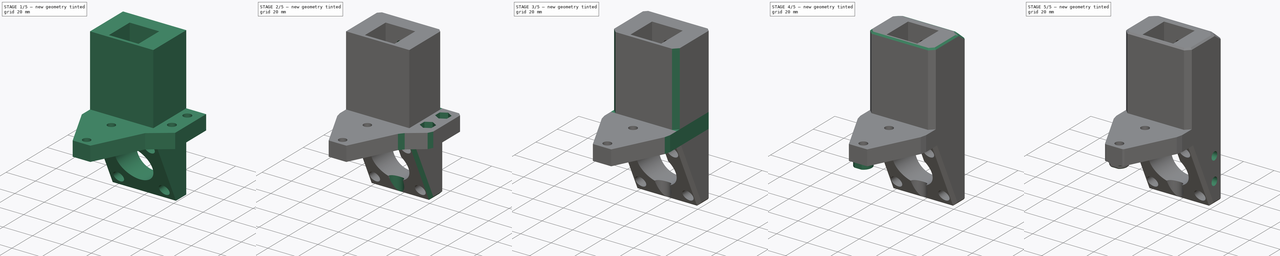
[diagram: build sequence overview — one tinted view per stage of 5, left to right]
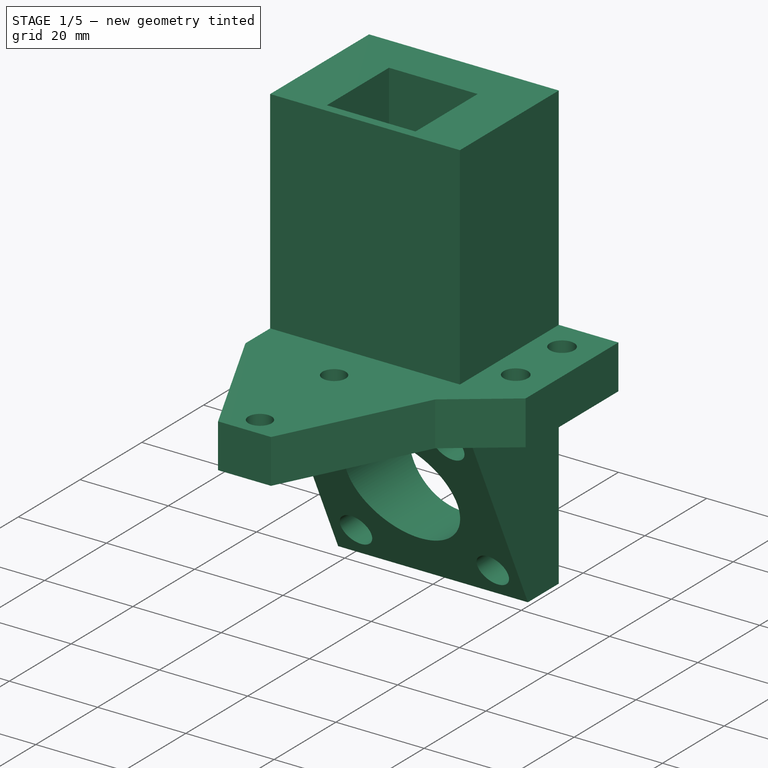
[diagram: stage 1 of 5 — iso view after this stage's code; geometry added in this stage tinted green]
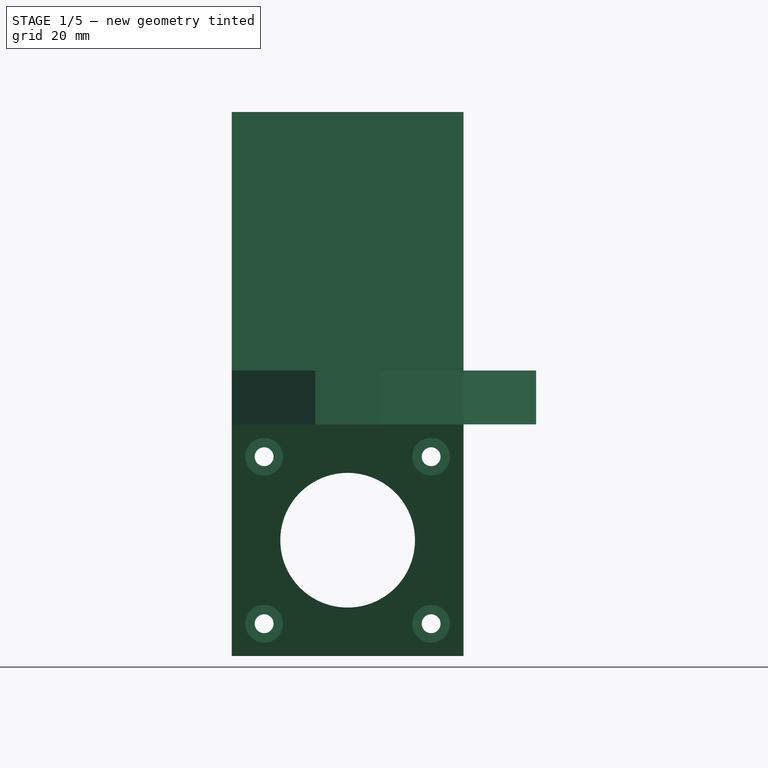
[diagram: stage 1 of 5 — front view after this stage's code; geometry added in this stage tinted green]
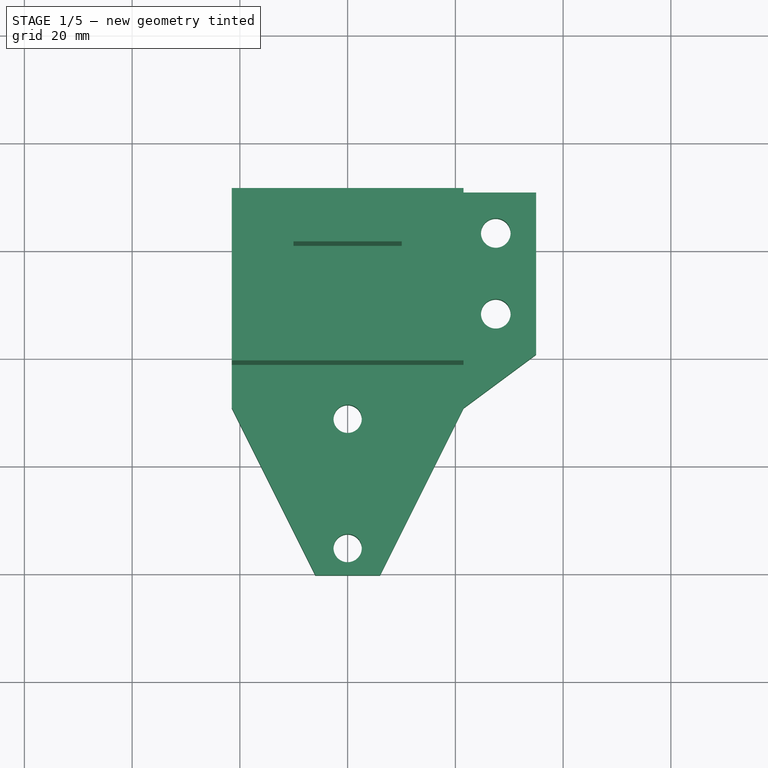
[diagram: stage 1 of 5 — top view after this stage's code; geometry added in this stage tinted green]
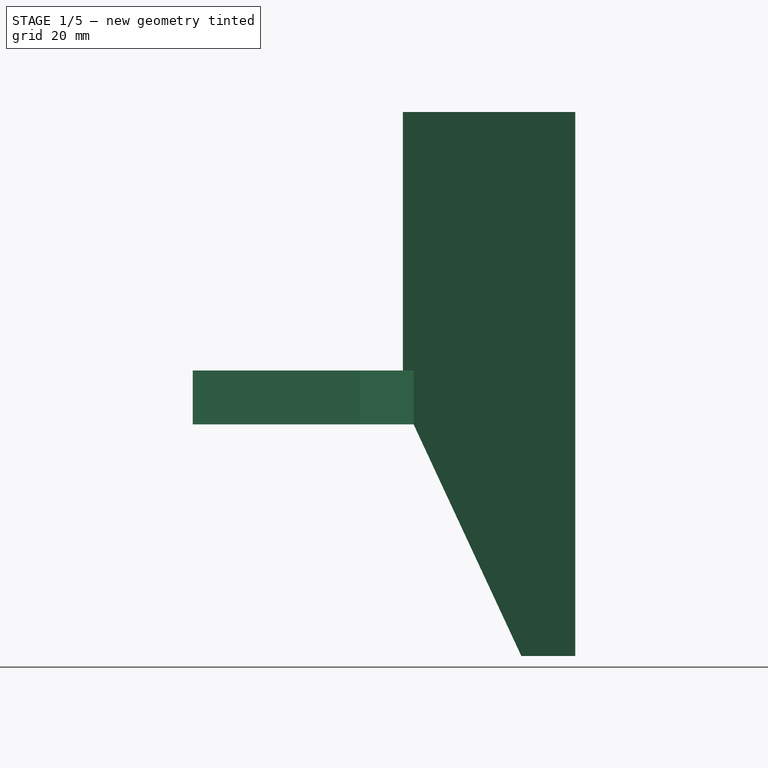
[diagram: stage 1 of 5 — right view after this stage's code; geometry added in this stage tinted green]
FCSTD DOCUMENT  (FreeCAD 0.19R24276 (Git))
Label: x-motor-mount
License: All rights reserved
LicenseURL: http://en.wikipedia.org/wiki/All_rights_reserved
objects: Sketcher::SketchObject×16, PartDesign::Plane×10, PartDesign::Pocket×9, PartDesign::Pad×5, PartDesign::Chamfer×5, PartDesign::Fillet×4, PartDesign::Hole×1, PartDesign::Body×1
note: 75 computed .brp shape members not serialized (recipe doc carries the construction recipe); baked Part::Feature solids carry a one-line shape summary decoded from their .brp

FEATURE [Sketcher::SketchObject] Sketch
  FullyConstrained = true
  MapMode = 5
  Support = -> [XY_Plane]
  sketch-geometry (12):
    g0: LineSegment StartX=35 StartY=1e-16 StartZ=0 EndX=35 EndY=30 EndZ=0
    g1: LineSegment StartX=35 StartY=30 StartZ=0 EndX=-21.5 EndY=30 EndZ=0
    g2: LineSegment StartX=-21.5 StartY=30 StartZ=0 EndX=-21.5 EndY=0 EndZ=0
    g3: Circle CenterX=27.5 CenterY=22.5 CenterZ=0 NormalX=0 NormalY=0 NormalZ=1 AngleXU=0 Radius=2.75
    g4: Circle CenterX=27.5 CenterY=7.5 CenterZ=0 NormalX=0 NormalY=0 NormalZ=1 AngleXU=0 Radius=2.75
    g5: LineSegment StartX=-21.5 StartY=-10 StartZ=0 EndX=-6 EndY=-41 EndZ=0
    g6: LineSegment StartX=-6 StartY=-41 StartZ=0 EndX=6 EndY=-41 EndZ=0
    g7: LineSegment StartX=6 StartY=-41 StartZ=0 EndX=21.5 EndY=-10 EndZ=0
    g8: LineSegment StartX=-21.5 StartY=0 StartZ=0 EndX=-21.5 EndY=-10 EndZ=0
    g9: LineSegment StartX=35 StartY=1e-16 StartZ=0 EndX=21.5 EndY=-10 EndZ=0
    g10: Circle CenterX=0 CenterY=-12 CenterZ=0 NormalX=0 NormalY=0 NormalZ=1 AngleXU=0 Radius=2.625
    g11: Circle CenterX=0 CenterY=-36 CenterZ=0 NormalX=0 NormalY=0 NormalZ=1 AngleXU=0 Radius=2.625
  constraints (35):
    c: Coincident(g0,g1)
    c: Coincident(g1,g2)
    c: Horizontal(g1)
    c: Vertical(g0)
    c: Vertical(g2)
    c: PointOnObject(g2,g-1)
    c: Distance(g0) = 30
    c: Diameter(g3) = 5.5
    c: Diameter(g4) = 5.5
    c: Distance(g3,g1) = 7.5
    c: Coincident(g6,g5)
    c: Coincident(g7,g6)
    c: Coincident(g8,g2)
    c: Coincident(g5,g8)
    c: Symmetric(g6,g5,g-2)
    c: DistanceX(g6,g6) = 12
    c: Coincident(g9,g7)
    c: PointOnObject(g10,g-2)
    c: PointOnObject(g11,g-2)
    c: Diameter(g10) = 5.25
    c: Equal(g10,g11)
    c: DistanceY(g11,g10) = 24
    c: DistanceY(g10,g-1) = 12
    c: DistanceX(g5,g7) = 43
    c: DistanceX(g-1,g0) = 35
    c: DistanceY(g-1,g1) = 30
    c: DistanceX(g2,g-1) = 21.5
    c: DistanceY(g4,g3) = 15
    c: Vertical(g4,g3)
    c: DistanceX(g-1,g4) = 27.5
    c: Vertical(g8)
    c: DistanceY(g8,g8) = 10
    c: Horizontal(g7,g5)
    c: Coincident(g9,g0)
    c: DistanceY(g6,g-1) = 41
FEATURE [PartDesign::Pad] Pad
  AllowMultiFace = false
  Direction = (0,0,1)
  Length = 10
  Length2 = 100
  Profile = -> Sketch
  Type = 0
FEATURE [PartDesign::Plane] DatumPlane
  Length = 64.2127
  MapMode = 5
  Placement = pos=(0,30,0) rot=(0,0.707107,0.707107;3.14159rad)
  ResizeMode = 0
  Support = -> [Pad]
  Width = 115.213
FEATURE [Sketcher::SketchObject] Sketch004  label="belt_cut_out"
  FullyConstrained = true
  MapMode = 5
  Support = -> [XY_Plane]
  sketch-geometry (4):
    g0: LineSegment StartX=-10 StartY=15 StartZ=0 EndX=10 EndY=15 EndZ=0
    g1: LineSegment StartX=10 StartY=15 StartZ=0 EndX=10 EndY=3 EndZ=0
    g2: LineSegment StartX=10 StartY=3 StartZ=0 EndX=-10 EndY=3 EndZ=0
    g3: LineSegment StartX=-10 StartY=3 StartZ=0 EndX=-10 EndY=15 EndZ=0
  constraints (11):
    c: Coincident(g0,g1)
    c: Coincident(g1,g2)
    c: Coincident(g2,g3)
    c: Coincident(g3,g0)
    c: Horizontal(g0)
    c: Vertical(g1)
    c: Vertical(g3)
    c: Symmetric(g2,g1,g-2)
    c: DistanceX(g2,g2) = 20
    c: DistanceY(g1,g1) = 12
    c: DistanceY(g-1,g0) = 15
FEATURE [Sketcher::SketchObject] Sketch005
  AttachmentOffset = pos=(0,0,-13) rot=(0,0,1;0rad)
  FullyConstrained = true
  MapMode = 5
  Placement = pos=(0,0,-13) rot=(0,0,1;0rad)
  Support = -> [XY_Plane]
  sketch-geometry (1):
    g0: Circle CenterX=0 CenterY=15 CenterZ=0 NormalX=0 NormalY=0 NormalZ=1 AngleXU=0 Radius=5
  constraints (3):
    c: PointOnObject(g0,g-2)
    c: Diameter(g0) = 10
    c: DistanceY(g-1,g0) = 15
FEATURE [Sketcher::SketchObject] Sketch006  label="20x20rail"
  AttachmentOffset = pos=(0,0,10) rot=(0,0,1;0rad)
  FullyConstrained = true
  MapMode = 5
  Placement = pos=(0,0,10) rot=(0,0,1;0rad)
  Support = -> [XY_Plane]
  sketch-geometry (8):
    g0: LineSegment StartX=-21.5 StartY=30 StartZ=0 EndX=21.5 EndY=30 EndZ=0
    g1: LineSegment StartX=21.5 StartY=30 StartZ=0 EndX=21.5 EndY=-2 EndZ=0
    g2: LineSegment StartX=-21.5 StartY=-2 StartZ=0 EndX=-21.5 EndY=30 EndZ=0
    g3: LineSegment StartX=-10.05 StartY=20.1 StartZ=0 EndX=10.05 EndY=20.1 EndZ=0
    g4: LineSegment StartX=10.05 StartY=20.1 StartZ=0 EndX=10.05 EndY=0 EndZ=0
    g5: LineSegment StartX=-10.05 StartY=0 StartZ=0 EndX=-10.05 EndY=20.1 EndZ=0
    g6: LineSegment StartX=-21.5 StartY=-2 StartZ=0 EndX=21.5 EndY=-2 EndZ=0
    g7: LineSegment StartX=-10.05 StartY=0 StartZ=0 EndX=10.05 EndY=0 EndZ=0
  constraints (22):
    c: Coincident(g0,g1)
    c: Coincident(g2,g0)
    c: Vertical(g1)
    c: Vertical(g2)
    c: Symmetric(g0,g0,g-2)
    c: DistanceX(g0,g0) = 43
    c: DistanceY(g-1,g0) = 30
    c: Coincident(g3,g4)
    c: Coincident(g5,g3)
    c: Vertical(g4)
    c: Vertical(g5)
    c: DistanceX(g3,g3) = 20.1
    c: Coincident(g6,g2)
    c: Horizontal(g5,g4)
    c: Symmetric(g3,g3,g-2)
    c: Coincident(g7,g5)
    c: Coincident(g7,g4)
    c: Horizontal(g2,g1)
    c: DistanceY(g1,g1) = 32
    c: Horizontal(g4,g-1)
    c: DistanceY(g4,g4) = 20.1
    c: Coincident(g6,g1)
FEATURE [PartDesign::Pad] Pad002  label="pad_spacer"
  BaseFeature = -> Pad
  Direction = (0,0,1)
  Length = 48
  Length2 = 100
  Profile = -> Sketch006
  Type = 0
FEATURE [Sketcher::SketchObject] Sketch001
  FullyConstrained = true
  MapMode = 5
  Placement = pos=(0,30,0) rot=(0,0.707107,0.707107;3.14159rad)
  Support = -> [Pad002]
  sketch-geometry (14):
    g0: LineSegment StartX=-21.5 StartY=0 StartZ=0 EndX=21.5 EndY=0 EndZ=0
    g1: LineSegment StartX=21.5 StartY=0 StartZ=0 EndX=21.5 EndY=-43 EndZ=0
    g2: LineSegment StartX=21.5 StartY=-43 StartZ=0 EndX=-21.5 EndY=-43 EndZ=0
    g3: LineSegment StartX=-21.5 StartY=-43 StartZ=0 EndX=-21.5 EndY=0 EndZ=0
    g4: LineSegment StartX=-15.5 StartY=-6 StartZ=0 EndX=15.5 EndY=-6 EndZ=0
    g5: LineSegment StartX=15.5 StartY=-6 StartZ=0 EndX=15.5 EndY=-37 EndZ=0
    g6: LineSegment StartX=15.5 StartY=-37 StartZ=0 EndX=-15.5 EndY=-37 EndZ=0
    g7: LineSegment StartX=-15.5 StartY=-37 StartZ=0 EndX=-15.5 EndY=-6 EndZ=0
    g8: LineSegment StartX=-21.5 StartY=-21.5 StartZ=0 EndX=21.5 EndY=-21.5 EndZ=0
    g9: Circle CenterX=0 CenterY=-21.5 CenterZ=0 NormalX=0 NormalY=0 NormalZ=1 AngleXU=0 Radius=12.5
    g10: Circle CenterX=-15.5 CenterY=-6 CenterZ=0 NormalX=0 NormalY=0 NormalZ=1 AngleXU=0 Radius=1.75
    g11: Circle CenterX=15.5 CenterY=-6 CenterZ=0 NormalX=0 NormalY=0 NormalZ=1 AngleXU=0 Radius=1.75
    g12: Circle CenterX=-15.5 CenterY=-37 CenterZ=0 NormalX=0 NormalY=0 NormalZ=1 AngleXU=0 Radius=1.75
    g13: Circle CenterX=15.5 CenterY=-37 CenterZ=0 NormalX=0 NormalY=0 NormalZ=1 AngleXU=0 Radius=1.75
  constraints (35):
    c: Coincident(g0,g1)
    c: Coincident(g1,g2)
    c: Coincident(g2,g3)
    c: Coincident(g3,g0)
    c: Horizontal(g2)
    c: Vertical(g1)
    c: Vertical(g3)
    c: Distance(g1) = 43
    c: Distance(g0) = 43
    c: PointOnObject(g-1,g0)
    c: Symmetric(g0,g0,g-2)
    c: Coincident(g4,g5)
    c: Coincident(g5,g6)
    c: Coincident(g6,g7)
    c: Coincident(g7,g4)
    c: Horizontal(g6)
    c: Vertical(g5)
    c: Distance(g5) = 31
    c: Distance(g4) = 31
    c: PointOnObject(g8,g3)
    c: PointOnObject(g8,g1)
    c: Symmetric(g0,g2,g8)
    c: Symmetric(g4,g4,g-2)
    c: Symmetric(g4,g6,g8)
    c: PointOnObject(g9,g-2)
    c: PointOnObject(g9,g8)
    c: Diameter(g9) = 25
    c: Coincident(g10,g4)
    c: Coincident(g11,g4)
    c: Coincident(g12,g6)
    c: Coincident(g13,g5)
    c: Diameter(g10) = 3.5
    c: Diameter(g11) = 3.5
    c: Diameter(g12) = 3.5
    c: Diameter(g13) = 3.5
FEATURE [PartDesign::Pad] Pad001
  AllowMultiFace = false
  BaseFeature = -> Pad002
  Direction = (0,1,0)
  Length = 30
  Length2 = 100
  Profile = -> Sketch001
  Reversed = true
  Type = 0
FEATURE [Sketcher::SketchObject] Sketch002
  FullyConstrained = true
  MapMode = 5
  Placement = pos=(21.5,0,0) rot=(0.57735,0.57735,0.57735;2.0944rad)
  Support = -> [Pad001]
  sketch-geometry (3):
    g0: LineSegment StartX=0 StartY=0 StartZ=0 EndX=20 EndY=-43 EndZ=0
    g1: LineSegment StartX=20 StartY=-43 StartZ=0 EndX=0 EndY=-43 EndZ=0
    g2: LineSegment StartX=0 StartY=-43 StartZ=0 EndX=0 EndY=0 EndZ=0
  constraints (8):
    c: Coincident(g-1,g0)
    c: Coincident(g0,g1)
    c: PointOnObject(g1,g-2)
    c: Horizontal(g1)
    c: Coincident(g1,g2)
    c: Coincident(g2,g0)
    c: DistanceY(g2,g2) = 43
    c: DistanceX(g1,g1) = 20
FEATURE [PartDesign::Pocket] Pocket
  AllowMultiFace = false
  BaseFeature = -> Pad001
  Length = 43
  Length2 = 100
  Profile = -> Sketch002
  Type = 0
FEATURE [Sketcher::SketchObject] Sketch003  label="reses_motor_bolts"
  AttachmentOffset = pos=(0,0,-30) rot=(0,0,1;0rad)
  FullyConstrained = false
  MapMode = 5
  Placement = pos=(0,0,6.7e-15) rot=(0,0.707107,0.707107;3.14159rad)
  Support = -> [Pocket]
  sketch-geometry (4):
    g0: Circle CenterX=15.5 CenterY=-6 CenterZ=0 NormalX=0 NormalY=0 NormalZ=1 AngleXU=0 Radius=3.5
    g1: Circle CenterX=15.5 CenterY=-37 CenterZ=0 NormalX=0 NormalY=0 NormalZ=1 AngleXU=0 Radius=3.5
    g2: Circle CenterX=-15.5 CenterY=-37 CenterZ=0 NormalX=0 NormalY=0 NormalZ=1 AngleXU=0 Radius=3.5
    g3: Circle CenterX=-15.5 CenterY=-6 CenterZ=0 NormalX=0 NormalY=0 NormalZ=1 AngleXU=0 Radius=3.5
  constraints (4):
    c: Diameter(g0) = 7
    c: Diameter(g3) = 7
    c: Diameter(g1) = 7
    c: Diameter(g2) = 7
FEATURE [PartDesign::Pocket] Pocket001
  AllowMultiFace = false
  BaseFeature = -> Pocket
  Length = 25
  Length2 = 100
  Profile = -> Sketch003
  Reversed = true
  Type = 0
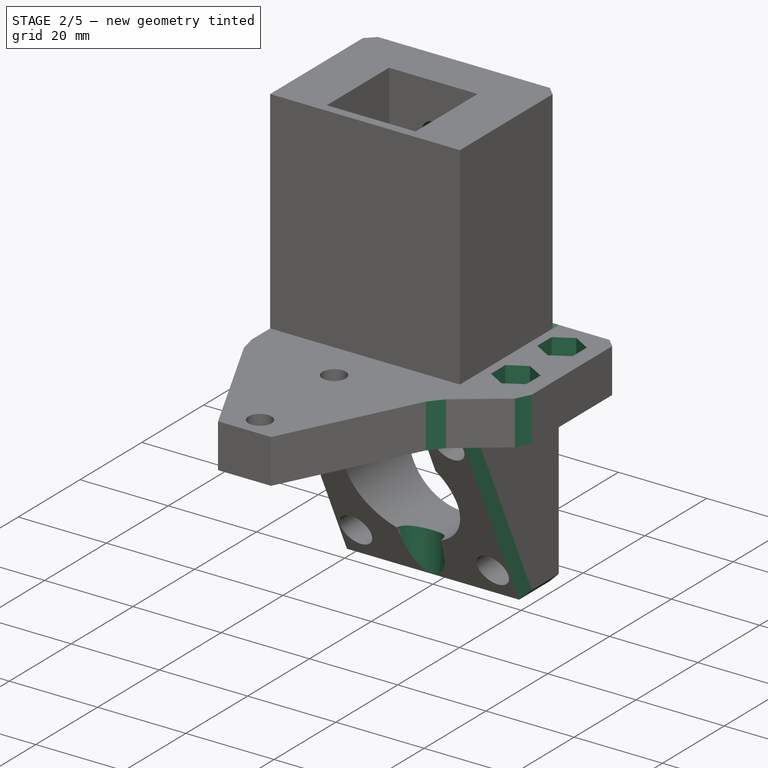
[diagram: stage 2 of 5 — iso view after this stage's code; geometry added in this stage tinted green]
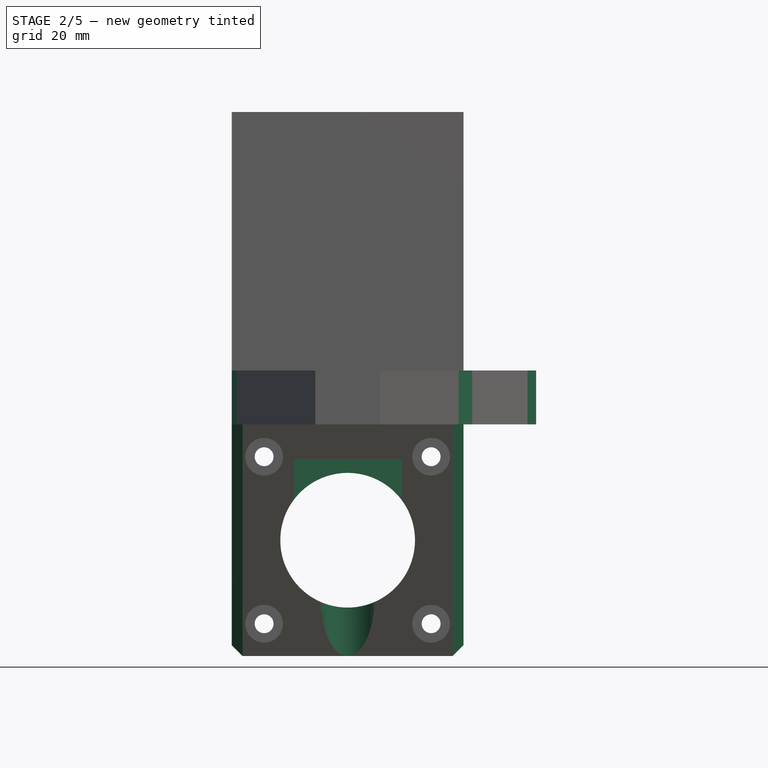
[diagram: stage 2 of 5 — front view after this stage's code; geometry added in this stage tinted green]
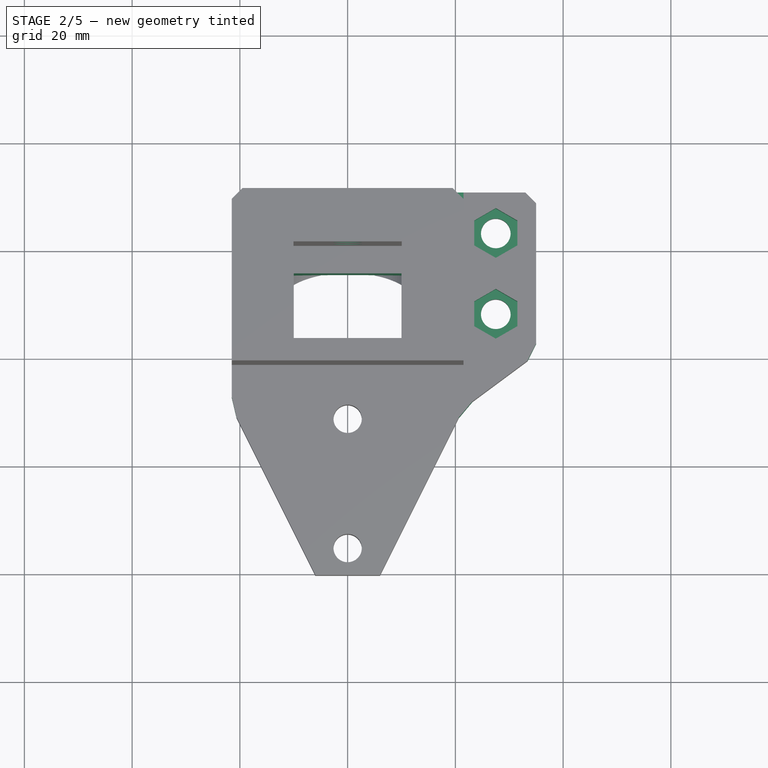
[diagram: stage 2 of 5 — top view after this stage's code; geometry added in this stage tinted green]
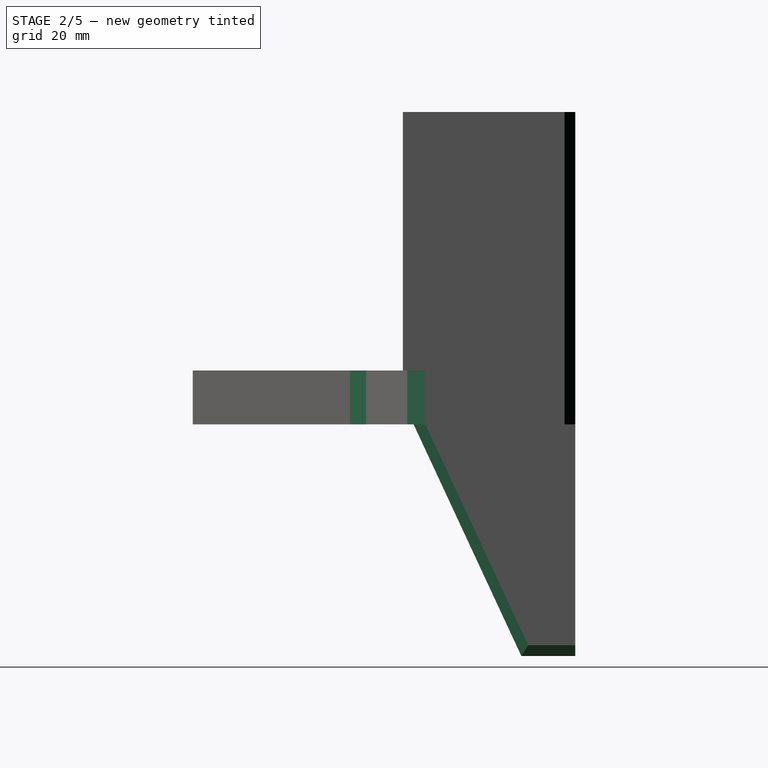
[diagram: stage 2 of 5 — right view after this stage's code; geometry added in this stage tinted green]
FEATURE [PartDesign::Pocket] Pocket002
  AllowMultiFace = false
  BaseFeature = -> Pocket001
  Length = 14
  Length2 = 70
  Profile = -> Sketch004
  Type = 4
FEATURE [PartDesign::Chamfer] Chamfer
  Angle = 45
  Base = -> Pocket002 [Edge2,Edge1,Edge80,Edge64,Edge63,Edge90,Edge5,Edge72,Edge52,Edge51,Edge49,Edge45,Edge46]
  BaseFeature = -> Pocket002
  ChamferType = 0
  FlipDirection = false
  Size = 2
  Size2 = 1
  SupportTransform = false
FEATURE [PartDesign::Pocket] Pocket003
  AllowMultiFace = false
  BaseFeature = -> Chamfer
  Length = 43
  Length2 = 100
  Profile = -> Sketch005
  Type = 0
FEATURE [Sketcher::SketchObject] Sketch007
  AttachmentOffset = pos=(0,0,-30) rot=(0,0,1;0rad)
  FullyConstrained = true
  MapMode = 5
  Placement = pos=(0,30,6.7e-15) rot=(1,0,0;1.5708rad)
  Support = -> [XZ_Plane]
  sketch-geometry (2):
    g0: Circle CenterX=0 CenterY=47 CenterZ=0 NormalX=0 NormalY=0 NormalZ=1 AngleXU=0 Radius=2.625
    g1: Circle CenterX=0 CenterY=28 CenterZ=0 NormalX=0 NormalY=0 NormalZ=1 AngleXU=0 Radius=2.625
  constraints (6):
    c: PointOnObject(g0,g-2)
    c: PointOnObject(g1,g-2)
    c: Diameter(g0) = 5.25
    c: Equal(g1,g0)
    c: DistanceY(g1,g0) = 19
    c: DistanceY(g-1,g0) = 47
FEATURE [PartDesign::Hole] Hole
  BaseFeature = -> Pocket003
  Depth = 25
  DepthType = 0
  Diameter = 5.3
  DrillForDepth = false
  DrillPoint = 0
  DrillPointAngle = 118
  HoleCutCountersinkAngle = 90
  HoleCutCustomValues = false
  HoleCutDepth = 5
  HoleCutDiameter = 10
  HoleCutType = 1
  ModelActualThread = false
  Profile = -> Sketch007
  Reversed = true
  Tapered = false
  TaperedAngle = 90
  ThreadAngle = 0
  ThreadClass = 0
  ThreadCutOffInner = 0
  ThreadCutOffOuter = 0
  ThreadDirection = 0
  ThreadFit = 1
  ThreadPitch = 0
  ThreadSize = 13
  ThreadType = 1
  Threaded = false
FEATURE [Sketcher::SketchObject] Sketch011
  AttachmentOffset = pos=(0,0,10) rot=(0,0,1;0rad)
  FullyConstrained = true
  MapMode = 5
  Placement = pos=(0,0,10) rot=(0,0,1;0rad)
  Support = -> [XY_Plane]
  sketch-geometry (14):
    g0: LineSegment StartX=31.5 StartY=20.1906 StartZ=0 EndX=31.5 EndY=24.8094 EndZ=0
    g1: LineSegment StartX=31.5 StartY=24.8094 StartZ=0 EndX=27.5 EndY=27.1188 EndZ=0
    g2: LineSegment StartX=27.5 StartY=27.1188 StartZ=0 EndX=23.5 EndY=24.8094 EndZ=0
    g3: LineSegment StartX=23.5 StartY=24.8094 StartZ=0 EndX=23.5 EndY=20.1906 EndZ=0
    g4: LineSegment StartX=23.5 StartY=20.1906 StartZ=0 EndX=27.5 EndY=17.8812 EndZ=0
    g5: LineSegment StartX=27.5 StartY=17.8812 StartZ=0 EndX=31.5 EndY=20.1906 EndZ=0
    g6: Circle CenterX=27.5 CenterY=22.5 CenterZ=0 NormalX=0 NormalY=0 NormalZ=1 AngleXU=0 Radius=4.6188
    g7: LineSegment StartX=31.5 StartY=5.1906 StartZ=0 EndX=31.5 EndY=9.8094 EndZ=0
    g8: LineSegment StartX=31.5 StartY=9.8094 StartZ=0 EndX=27.5 EndY=12.1188 EndZ=0
    g9: LineSegment StartX=27.5 StartY=12.1188 StartZ=0 EndX=23.5 EndY=9.8094 EndZ=0
    g10: LineSegment StartX=23.5 StartY=9.8094 StartZ=0 EndX=23.5 EndY=5.1906 EndZ=0
    g11: LineSegment StartX=23.5 StartY=5.1906 StartZ=0 EndX=27.5 EndY=2.8812 EndZ=0
    g12: LineSegment StartX=27.5 StartY=2.8812 StartZ=0 EndX=31.5 EndY=5.1906 EndZ=0
    g13: Circle CenterX=27.5 CenterY=7.5 CenterZ=0 NormalX=0 NormalY=0 NormalZ=1 AngleXU=0 Radius=4.6188
  constraints (34):
    c: Coincident(g0,g1)
    c: Coincident(g1,g2)
    c: Coincident(g2,g3)
    c: Coincident(g3,g4)
    c: Coincident(g4,g5)
    c: Coincident(g5,g0)
    c: Equal(g0, g1-g5) x5
    c: PointOnObject(g0,g6)
    c: PointOnObject(g1,g6)
    c: PointOnObject(g2,g6)
    c: PointOnObject(g3,g6)
    c: PointOnObject(g4,g6)
    c: PointOnObject(g5,g6)
    c: Coincident(g7,g8)
    c: Coincident(g8,g9)
    c: Coincident(g9,g10)
    c: Coincident(g10,g11)
    c: Coincident(g11,g12)
    c: Coincident(g12,g7)
    c: Equal(g7, g8-g12) x5
    c: PointOnObject(g7,g13)
    c: PointOnObject(g8,g13)
    c: PointOnObject(g9,g13)
    c: PointOnObject(g10,g13)
    c: PointOnObject(g11,g13)
    c: PointOnObject(g12,g13)
    c: Vertical(g6,g13)
    c: DistanceY(g-1,g13) = 7.5
    c: DistanceY(g13,g6) = 15
    c: DistanceX(g2,g0) = 8
    c: Vertical(g0)
    c: Vertical(g7)
    c: Equal(g13,g6)
    c: DistanceX(g-1,g13) = 27.5
FEATURE [PartDesign::Pocket] Pocket007  label="pocket_m5_nuts"
  BaseFeature = -> Hole
  Length = 5
  Length2 = 100
  Profile = -> Sketch011
  Type = 0
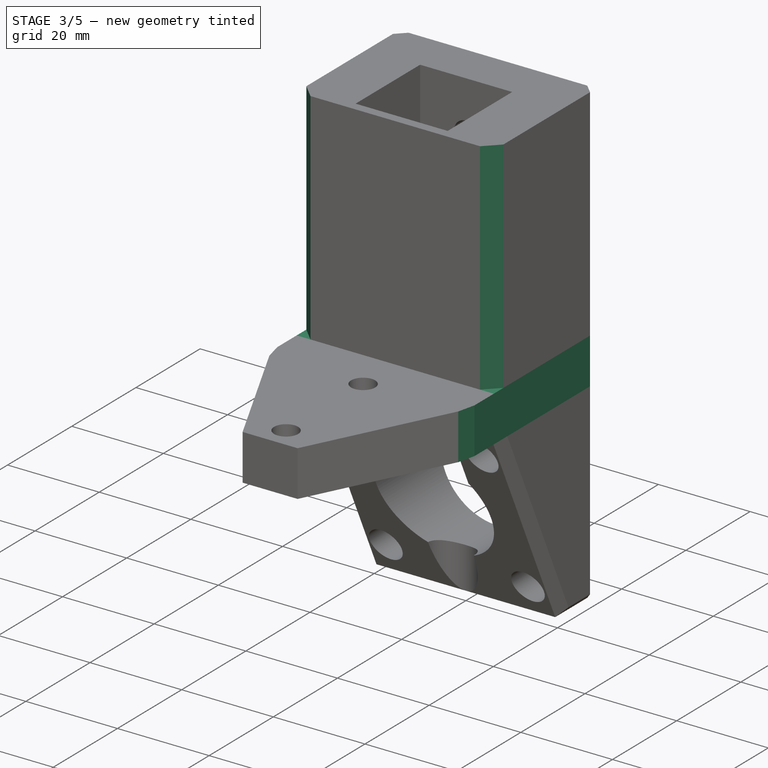
[diagram: stage 3 of 5 — iso view after this stage's code; geometry added in this stage tinted green]
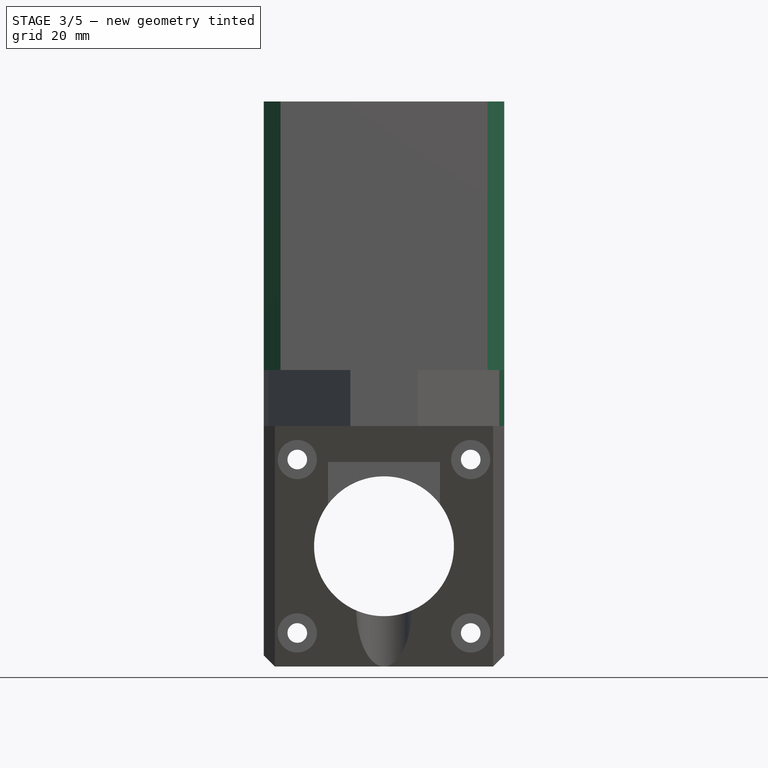
[diagram: stage 3 of 5 — front view after this stage's code; geometry added in this stage tinted green]
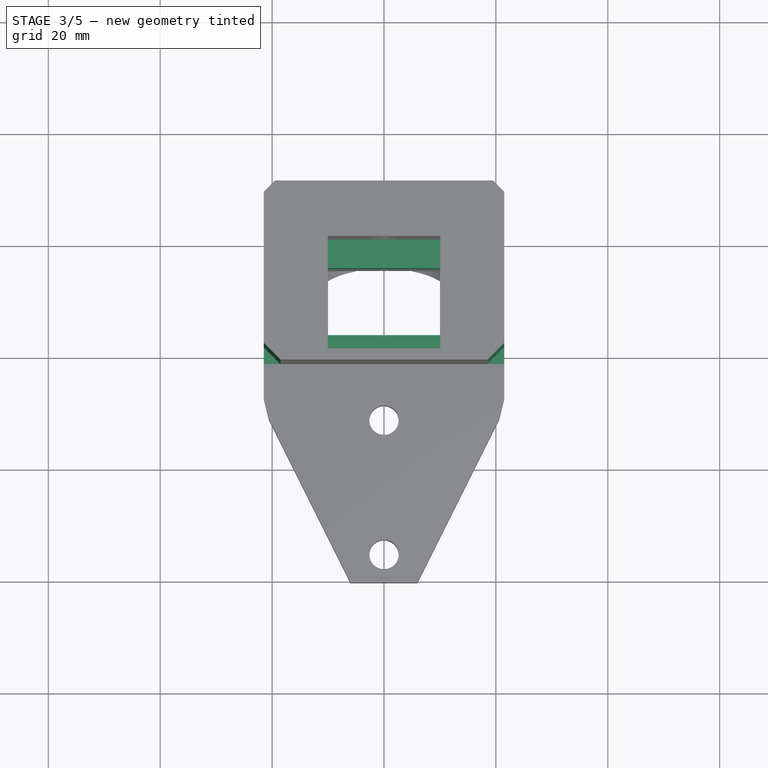
[diagram: stage 3 of 5 — top view after this stage's code; geometry added in this stage tinted green]
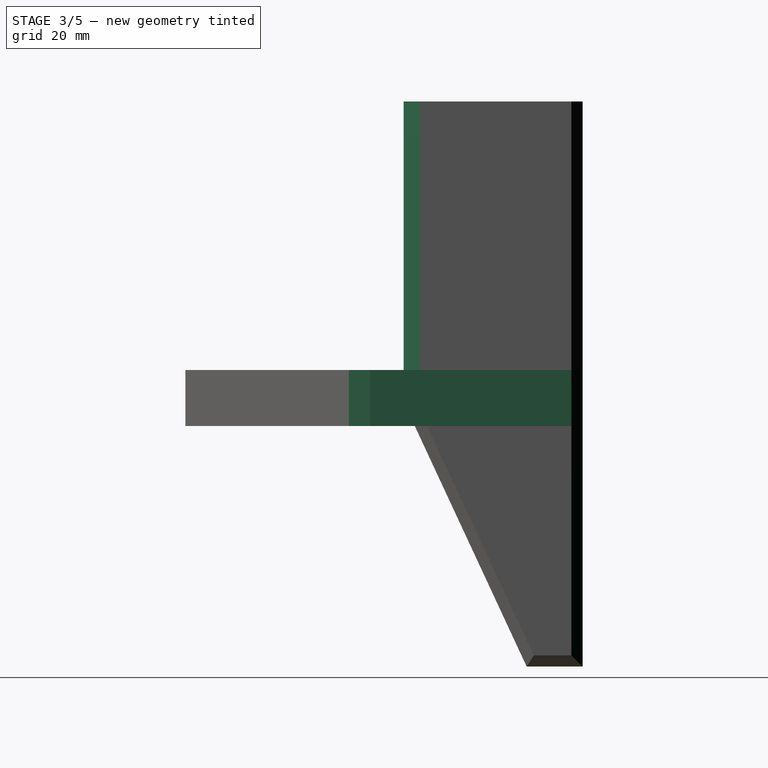
[diagram: stage 3 of 5 — right view after this stage's code; geometry added in this stage tinted green]
FEATURE [PartDesign::Plane] DatumPlane004  label="PrintPlane"
  Length = 87.9364
  MapMode = 5
  Placement = pos=(21.5,0,0) rot=(0.57735,0.57735,0.57735;2.0944rad)
  ResizeMode = 0
  Support = -> [Pocket007]
  Width = 117.936
FEATURE [PartDesign::Plane] DatumPlane005  label="LimitSwitchDatum"
  Length = 87.9364
  MapMode = 5
  Placement = pos=(-21.5,0,0) rot=(0.57735,-0.57735,-0.57735;2.0944rad)
  ResizeMode = 0
  Support = -> [Pocket002]
  Width = 117.936
FEATURE [PartDesign::Plane] DatumPlane006
  Length = 61.9164
  MapMode = 5
  Placement = pos=(0,0,10) rot=(0,0,1;0rad)
  ResizeMode = 0
  Support = -> [Pocket007]
  Width = 82.9164
FEATURE [Sketcher::SketchObject] Sketch013
  FullyConstrained = false
  MapMode = 5
  Placement = pos=(0,0,10) rot=(0,0,1;0rad)
  Support = -> [DatumPlane006]
  sketch-geometry (13):
    g0: LineSegment StartX=-21.5 StartY=1 StartZ=0 EndX=-21.5 EndY=-0.00563 EndZ=0
    g1: LineSegment StartX=-21.5 StartY=-0.00563 StartZ=0 EndX=-21.5 EndY=-2 EndZ=0
    g2: LineSegment StartX=-21.5 StartY=-2 StartZ=0 EndX=-21.5 EndY=-8 EndZ=0
    g3: LineSegment StartX=-21.5 StartY=-8 StartZ=0 EndX=-20.6056 EndY=-11.7889 EndZ=0
    g4: LineSegment StartX=0 StartY=-46.3606 StartZ=0 EndX=0 EndY=-2.67783 EndZ=0
    g5: LineSegment StartX=21.5 StartY=-8 StartZ=0 EndX=20.6071 EndY=-11.7808 EndZ=0
    g6: LineSegment StartX=21.5 StartY=1 StartZ=0 EndX=21.5 EndY=-8 EndZ=0
    g7: LineSegment StartX=21.5 StartY=1 StartZ=0 EndX=21.5 EndY=28 EndZ=0
    g8: LineSegment StartX=21.5 StartY=28 StartZ=0 EndX=19.5 EndY=30 EndZ=0
    g9: LineSegment StartX=19.5 StartY=30 StartZ=0 EndX=22.5064 EndY=51.5191 EndZ=0
    g10: LineSegment StartX=22.5064 StartY=51.5191 StartZ=0 EndX=65.1303 EndY=42.5206 EndZ=0
    g11: LineSegment StartX=65.1303 StartY=42.5206 StartZ=0 EndX=27.5323 EndY=-21.6436 EndZ=0
    g12: LineSegment StartX=20.6071 StartY=-11.7808 StartZ=0 EndX=27.5323 EndY=-21.6436 EndZ=0
  constraints (13):
    c: Coincident(g1,g0)
    c: Coincident(g2,g1)
    c: Coincident(g3,g2)
    c: PointOnObject(g4,g-2)
    c: PointOnObject(g4,g-2)
    c: Coincident(g5,g6)
    c: Coincident(g7,g6)
    c: Coincident(g8,g7)
    c: Coincident(g9,g8)
    c: Coincident(g10,g9)
    c: Coincident(g11,g10)
    c: Coincident(g12,g5)
    c: Coincident(g12,g11)
FEATURE [PartDesign::Pocket] Pocket009
  BaseFeature = -> Pocket007
  Length = 5
  Length2 = 100
  Profile = -> Sketch013
  Type = 1
FEATURE [PartDesign::Plane] DatumPlane007
  Length = 87.9364
  MapMode = 5
  Placement = pos=(-21.5,0,0) rot=(0.57735,-0.57735,-0.57735;2.0944rad)
  ResizeMode = 0
  Support = -> [Pocket009]
  Width = 117.936
FEATURE [Sketcher::SketchObject] Sketch014
  FullyConstrained = false
  MapMode = 5
  Placement = pos=(-21.5,0,0) rot=(0.57735,-0.57735,-0.57735;2.0944rad)
  Support = -> [DatumPlane007]
  sketch-geometry (10):
    g0: LineSegment StartX=30 StartY=-9 StartZ=0 EndX=4.17115 EndY=-9 EndZ=0
    g1: LineSegment StartX=30 StartY=-34 StartZ=0 EndX=15.8288 EndY=-34 EndZ=0
    g2: LineSegment StartX=15.8288 StartY=-34 StartZ=0 EndX=4.17115 EndY=-9 EndZ=0
    g3: LineSegment StartX=30 StartY=-9 StartZ=0 EndX=30 EndY=-34 EndZ=0
    g4: LineSegment StartX=15 StartY=-14 StartZ=0 EndX=30 EndY=-14 EndZ=0
    g5: GeomPoint X=22.5 Y=-14 Z=0
    g6: LineSegment StartX=22.5 StartY=-14 StartZ=0 EndX=22.5 EndY=-29 EndZ=0
    g7: GeomPoint X=22.5 Y=-21.5 Z=0
    g8: Circle CenterX=22.5 CenterY=-14 CenterZ=0 NormalX=0 NormalY=0 NormalZ=1 AngleXU=0 Radius=2.1
    g9: Circle CenterX=22.5 CenterY=-29 CenterZ=0 NormalX=0 NormalY=0 NormalZ=1 AngleXU=0 Radius=2.1
  constraints (17):
    c: Horizontal(g0)
    c: Horizontal(g1)
    c: Coincident(g2,g1)
    c: Coincident(g2,g0)
    c: Coincident(g3,g0)
    c: Coincident(g3,g1)
    c: PointOnObject(g4,g3)
    c: Horizontal(g4)
    c: Symmetric(g4,g4,g5)
    c: Coincident(g6,g5)
    c: Vertical(g6)
    c: Symmetric(g6,g6,g7)
    c: Coincident(g8,g5)
    c: Coincident(g9,g6)
    c: Equal(g9,g8)
    c: Diameter(g8) = 4.2
    c: Distance(g9,g5) = 15
FEATURE [PartDesign::Pocket] Pocket010
  BaseFeature = -> Pocket009
  Length = 16
  Length2 = 100
  Offset = -2
  Profile = -> Sketch014
  Type = 0
FEATURE [PartDesign::Plane] DatumPlane008
  Length = 61.9164
  MapMode = 5
  Placement = pos=(0,0,10) rot=(0,0,1;0rad)
  ResizeMode = 0
  Support = -> [Pocket010]
  Width = 82.9164
FEATURE [Sketcher::SketchObject] Sketch015
  ExternalGeometry = -> [Pocket010]
  FullyConstrained = true
  MapMode = 5
  Placement = pos=(0,0,10) rot=(0,0,1;0rad)
  Support = -> [DatumPlane008]
  sketch-geometry (8):
    g0: LineSegment StartX=-10.05 StartY=20.1 StartZ=0 EndX=10.05 EndY=20.1 EndZ=0
    g1: LineSegment StartX=10.05 StartY=20.1 StartZ=0 EndX=10.05 EndY=15 EndZ=0
    g2: LineSegment StartX=10.05 StartY=15 StartZ=0 EndX=-10.05 EndY=15 EndZ=0
    g3: LineSegment StartX=-10.05 StartY=15 StartZ=0 EndX=-10.05 EndY=20.1 EndZ=0
    g4: LineSegment StartX=-10.05 StartY=0 StartZ=0 EndX=10.05 EndY=0 EndZ=0
    g5: LineSegment StartX=10.05 StartY=0 StartZ=0 EndX=10.05 EndY=3 EndZ=0
    g6: LineSegment StartX=10.05 StartY=3 StartZ=0 EndX=-10.05 EndY=3 EndZ=0
    g7: LineSegment StartX=-10.05 StartY=3 StartZ=0 EndX=-10.05 EndY=0 EndZ=0
  constraints (22):
    c: Coincident(g0,g1)
    c: Coincident(g1,g2)
    c: Coincident(g2,g3)
    c: Coincident(g3,g0)
    c: Horizontal(g0)
    c: Horizontal(g2)
    c: Vertical(g1)
    c: Vertical(g3)
    c: Coincident(g4,g5)
    c: Coincident(g5,g6)
    c: Coincident(g6,g7)
    c: Coincident(g7,g4)
    c: Horizontal(g4)
    c: Horizontal(g6)
    c: Vertical(g5)
    c: Vertical(g7)
    c: PointOnObject(g6,g-8)
    c: PointOnObject(g-9,g6)
    c: Coincident(g4,g-10)
    c: PointOnObject(g2,g-8)
    c: PointOnObject(g2,g-7)
    c: Coincident(g0,g-10)
FEATURE [PartDesign::Pad] Pad003
  BaseFeature = -> Pocket010
  Direction = (1,1,1)
  Length = 11
  Length2 = 100
  Profile = -> Sketch015
  Type = 0
FEATURE [PartDesign::Chamfer] Chamfer004
  Angle = 45
  Base = -> Pad003 [Edge69,Edge108]
  BaseFeature = -> Pad003
  ChamferType = 0
  FlipDirection = false
  Size = 3
  Size2 = 1
  SupportTransform = false
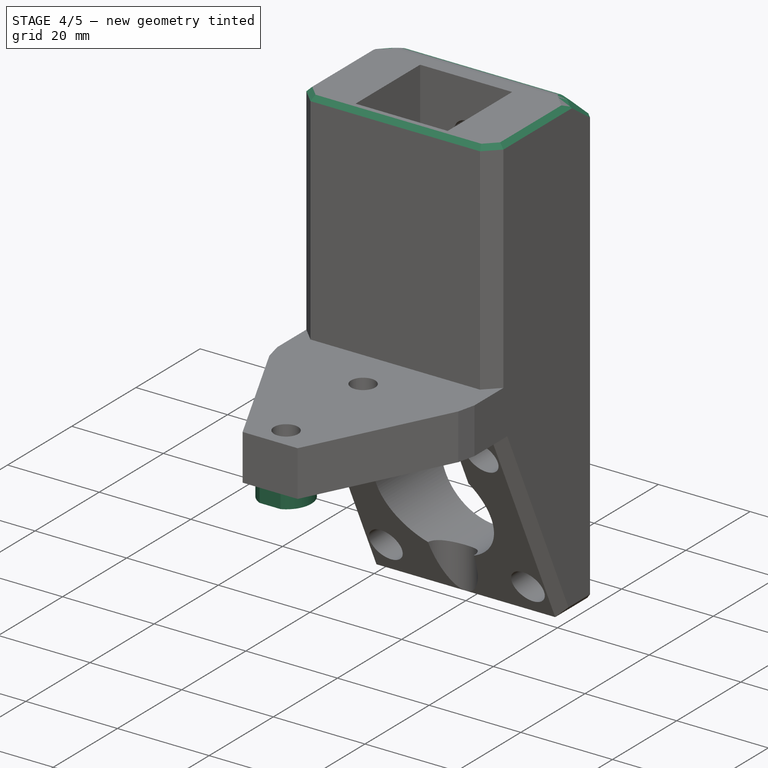
[diagram: stage 4 of 5 — iso view after this stage's code; geometry added in this stage tinted green]
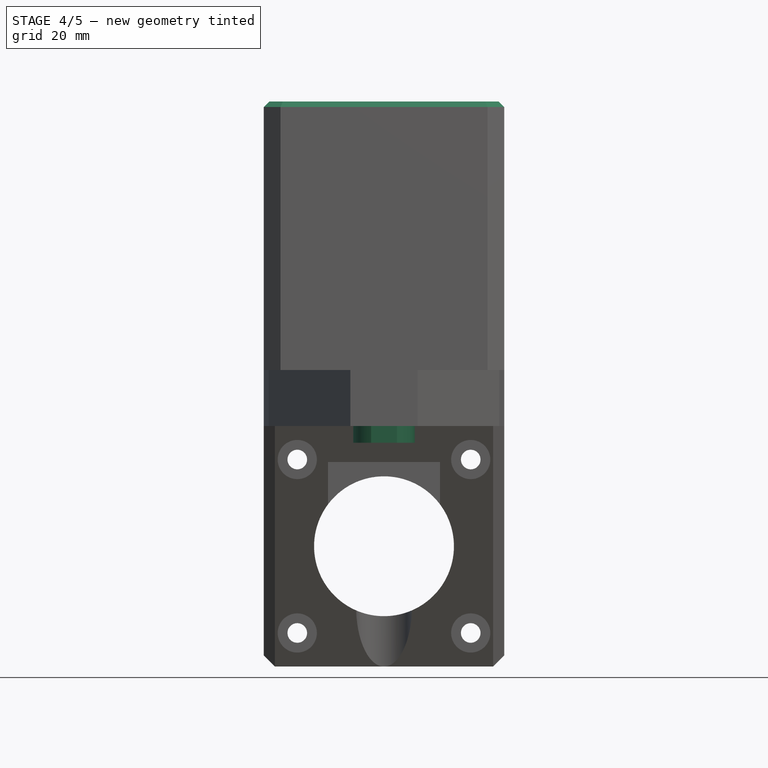
[diagram: stage 4 of 5 — front view after this stage's code; geometry added in this stage tinted green]
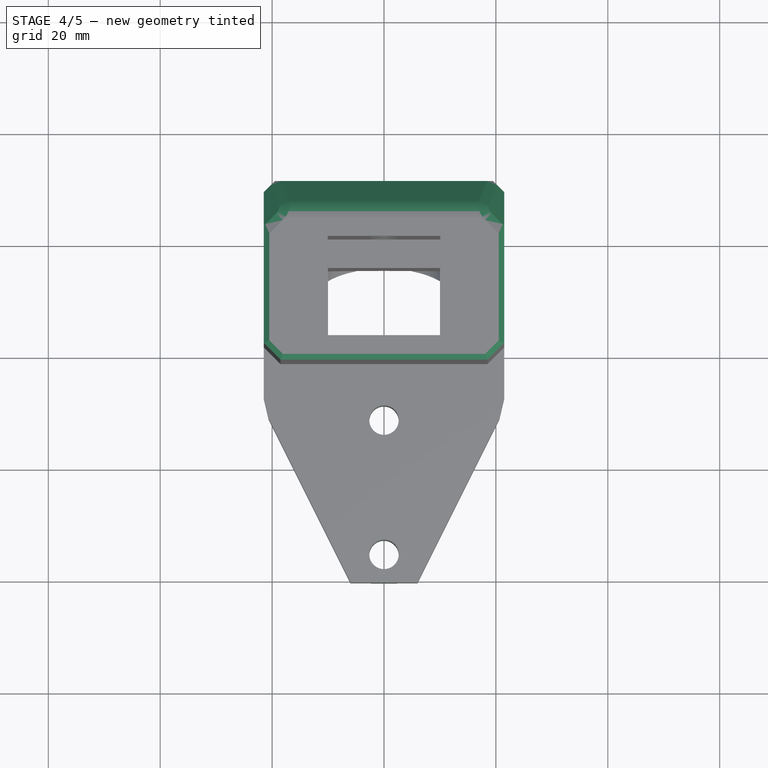
[diagram: stage 4 of 5 — top view after this stage's code; geometry added in this stage tinted green]
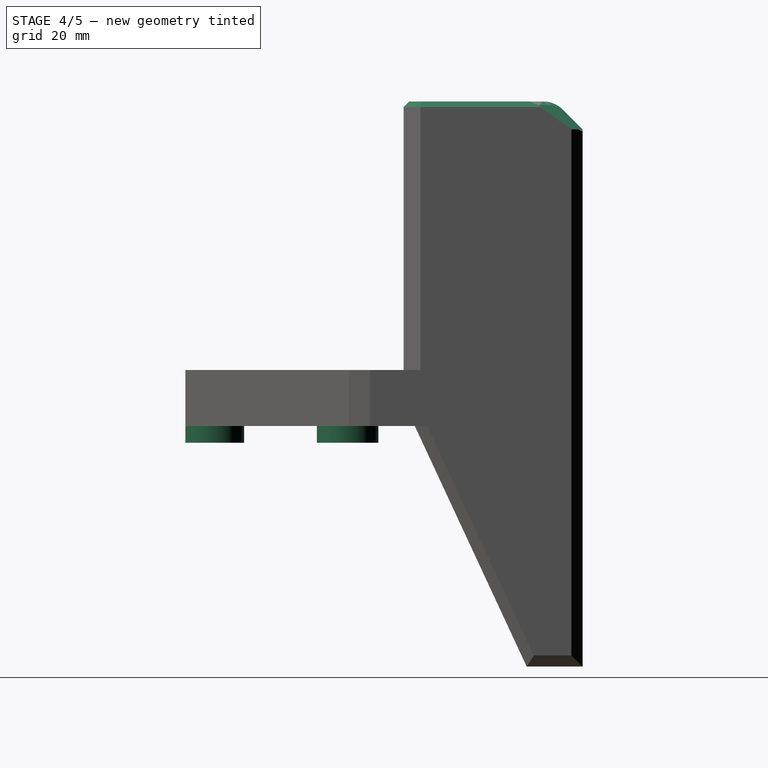
[diagram: stage 4 of 5 — right view after this stage's code; geometry added in this stage tinted green]
FEATURE [PartDesign::Chamfer] Chamfer006
  Angle = 45
  Base = -> Chamfer004 [Edge28,Edge25,Edge18,Edge22,Edge24]
  BaseFeature = -> Chamfer004
  ChamferType = 0
  FlipDirection = false
  Size = 1
  Size2 = 1
  SupportTransform = false
FEATURE [PartDesign::Chamfer] Chamfer007
  Angle = 45
  Base = -> Chamfer006 [Edge37,Edge35,Edge38]
  BaseFeature = -> Chamfer006
  ChamferType = 0
  FlipDirection = false
  Size = 5
  Size2 = 1
  SupportTransform = false
FEATURE [PartDesign::Fillet] Fillet
  Base = -> Chamfer007 [Edge26]
  BaseFeature = -> Chamfer007
  Radius = 5
  SupportTransform = false
FEATURE [PartDesign::Chamfer] Chamfer008
  Angle = 45
  Base = -> Fillet [Edge18,Edge22,Edge2,Edge4]
  BaseFeature = -> Fillet
  ChamferType = 0
  FlipDirection = false
  Size = 1
  Size2 = 1
  SupportTransform = false
FEATURE [PartDesign::Plane] DatumPlane009
  Length = 61.9164
  MapMode = 5
  Placement = pos=(0,0,0) rot=(1,0,0;3.14159rad)
  ResizeMode = 0
  Support = -> [Chamfer008]
  Width = 82.9164
FEATURE [Sketcher::SketchObject] Sketch016  label="BOLT RESTING SURFACE"
  ExternalGeometry = -> [Chamfer008]
  FullyConstrained = true
  MapMode = 5
  Placement = pos=(0,0,0) rot=(1,0,0;3.14159rad)
  Support = -> [DatumPlane009]
  sketch-geometry (5):
    g0: ArcOfCircle CenterX=0 CenterY=36 CenterZ=0 NormalX=0 NormalY=0 NormalZ=1 AngleXU=0 Radius=5.5 StartAngle=2.0005 EndAngle=7.42428
    g1: Circle CenterX=0 CenterY=12 CenterZ=0 NormalX=0 NormalY=0 NormalZ=1 AngleXU=0 Radius=5.5
    g2: LineSegment StartX=2.29129 StartY=41 StartZ=0 EndX=-2.29129 EndY=41 EndZ=0
    g3: Circle CenterX=0 CenterY=12 CenterZ=0 NormalX=0 NormalY=0 NormalZ=1 AngleXU=0 Radius=2.625
    g4: Circle CenterX=0 CenterY=36 CenterZ=0 NormalX=0 NormalY=0 NormalZ=1 AngleXU=0 Radius=2.625
  constraints (12):
    c: Coincident(g0,g-3)
    c: Coincident(g1,g-4)
    c: PointOnObject(g2,g-5)
    c: PointOnObject(g2,g-5)
    c: Equal(g0,g1)
    c: Coincident(g0,g2)
    c: Coincident(g0,g2)
    c: Radius(g1) = 5.5
    c: Coincident(g3,g1)
    c: Coincident(g4,g0)
    c: Equal(g3,g-4)
    c: Equal(g-3,g4)
FEATURE [PartDesign::Pad] Pad004
  BaseFeature = -> Chamfer008
  Direction = (1,1,1)
  Length = 3
  Length2 = 100
  Profile = -> Sketch016
  Type = 0
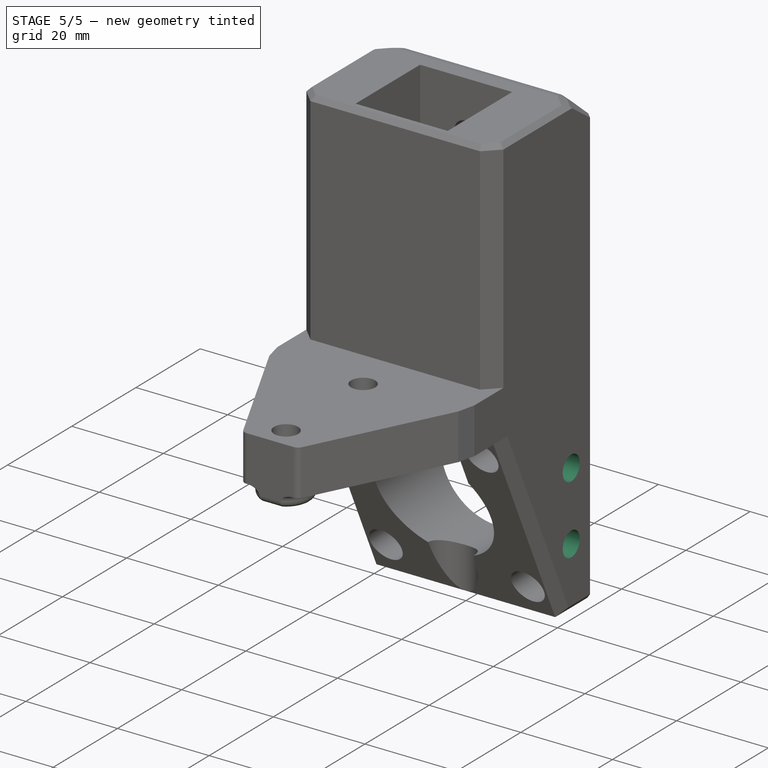
[diagram: stage 5 of 5 — iso view after this stage's code; geometry added in this stage tinted green]
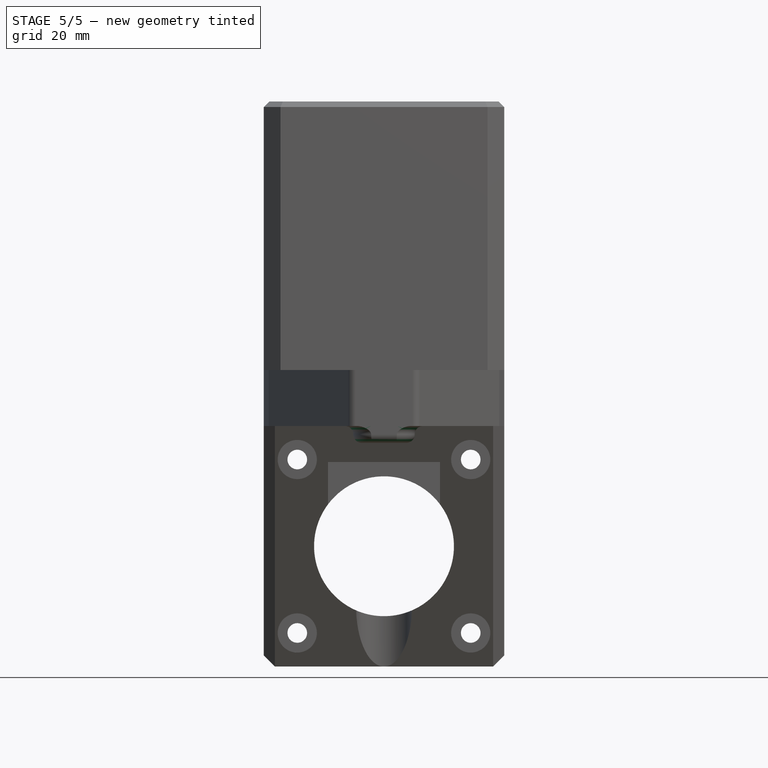
[diagram: stage 5 of 5 — front view after this stage's code; geometry added in this stage tinted green]
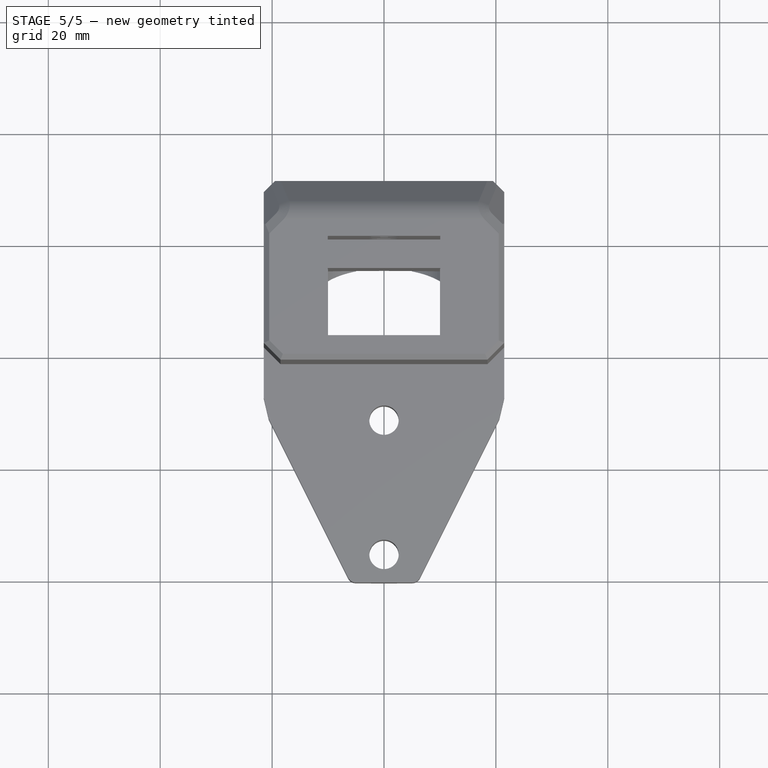
[diagram: stage 5 of 5 — top view after this stage's code; geometry added in this stage tinted green]
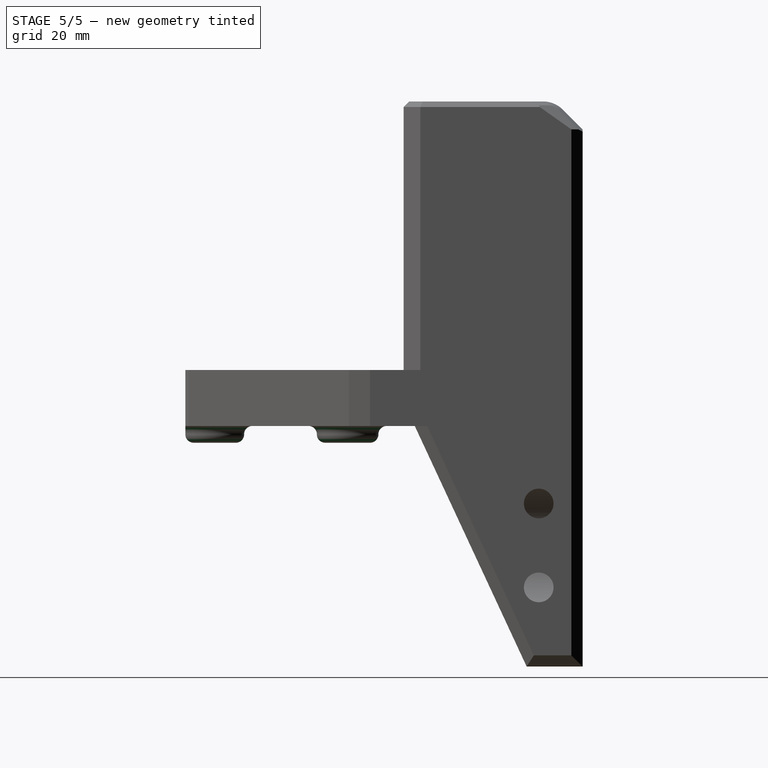
[diagram: stage 5 of 5 — right view after this stage's code; geometry added in this stage tinted green]
FEATURE [PartDesign::Plane] DatumPlane010
  Length = 87.9364
  MapMode = 5
  Placement = pos=(21.5,0,0) rot=(0.57735,0.57735,0.57735;2.0944rad)
  ResizeMode = 0
  Support = -> [Pad004]
  Width = 117.936
FEATURE [Sketcher::SketchObject] Sketch018
  FullyConstrained = false
  MapMode = 5
  Placement = pos=(21.5,0,0) rot=(0.57735,0.57735,0.57735;2.0944rad)
  Support = -> [DatumPlane010]
  sketch-geometry (4):
    g0: Circle CenterX=22.1554 CenterY=-13.8556 CenterZ=0 NormalX=0 NormalY=0 NormalZ=1 AngleXU=0 Radius=2.65
    g1: Circle CenterX=22.1554 CenterY=-28.8556 CenterZ=0 NormalX=0 NormalY=0 NormalZ=1 AngleXU=0 Radius=2.65
    g2: LineSegment StartX=22.1554 StartY=-13.8556 StartZ=0 EndX=22.1554 EndY=-28.8556 EndZ=0
    g3: GeomPoint X=22.1554 Y=-21.3556 Z=0
  constraints (7):
    c: DistanceY(g1,g0) = 15
    c: Equal(g0,g1)
    c: Vertical(g0,g1)
    c: Coincident(g2,g0)
    c: Coincident(g2,g1)
    c: Symmetric(g2,g2,g3)
    c: Diameter(g0) = 5.3
FEATURE [PartDesign::Pocket] Pocket012
  BaseFeature = -> Pad004
  Length = 17
  Length2 = 100
  Profile = -> Sketch018
  Type = 0
FEATURE [PartDesign::Plane] DatumPlane011
  Length = 61.9164
  MapMode = 5
  Placement = pos=(0,0,0) rot=(1,0,0;3.14159rad)
  ResizeMode = 0
  Support = -> [Pad004]
  Width = 82.9164
FEATURE [PartDesign::Plane] DatumPlane012
  AttachmentOffset = pos=(0,0,-4) rot=(0,0,1;0rad)
  Length = 87.9364
  MapMode = 5
  Placement = pos=(17.5,0,0) rot=(0.57735,0.57735,0.57735;2.0944rad)
  ResizeMode = 0
  Support = -> [Pocket012]
  Width = 117.936
FEATURE [Sketcher::SketchObject] Sketch019
  ExternalGeometry = -> [Pocket012]
  FullyConstrained = true
  MapMode = 5
  Placement = pos=(17.5,0,0) rot=(0.57735,0.57735,0.57735;2.0944rad)
  Support = -> [DatumPlane012]
  sketch-geometry (14):
    g0: LineSegment StartX=19.846 StartY=-9.85564 StartZ=0 EndX=17.5366 EndY=-13.8556 EndZ=0
    g1: LineSegment StartX=17.5366 StartY=-13.8556 StartZ=0 EndX=19.846 EndY=-17.8556 EndZ=0
    g2: LineSegment StartX=19.846 StartY=-17.8556 StartZ=0 EndX=24.4648 EndY=-17.8556 EndZ=0
    g3: LineSegment StartX=24.4648 StartY=-17.8556 StartZ=0 EndX=26.7742 EndY=-13.8556 EndZ=0
    g4: LineSegment StartX=26.7742 StartY=-13.8556 StartZ=0 EndX=24.4648 EndY=-9.85564 EndZ=0
    g5: LineSegment StartX=24.4648 StartY=-9.85564 StartZ=0 EndX=19.846 EndY=-9.85564 EndZ=0
    g6: Circle CenterX=22.1554 CenterY=-13.8556 CenterZ=0 NormalX=0 NormalY=0 NormalZ=1 AngleXU=0 Radius=4.6188
    g7: LineSegment StartX=19.846 StartY=-24.8556 StartZ=0 EndX=17.5366 EndY=-28.8556 EndZ=0
    g8: LineSegment StartX=17.5366 StartY=-28.8556 StartZ=0 EndX=19.846 EndY=-32.8556 EndZ=0
    g9: LineSegment StartX=19.846 StartY=-32.8556 StartZ=0 EndX=24.4648 EndY=-32.8556 EndZ=0
    g10: LineSegment StartX=24.4648 StartY=-32.8556 StartZ=0 EndX=26.7742 EndY=-28.8556 EndZ=0
    g11: LineSegment StartX=26.7742 StartY=-28.8556 StartZ=0 EndX=24.4648 EndY=-24.8556 EndZ=0
    g12: LineSegment StartX=24.4648 StartY=-24.8556 StartZ=0 EndX=19.846 EndY=-24.8556 EndZ=0
    g13: Circle CenterX=22.1554 CenterY=-28.8556 CenterZ=0 NormalX=0 NormalY=0 NormalZ=1 AngleXU=0 Radius=4.6188
  constraints (32):
    c: Coincident(g0,g1)
    c: Coincident(g1,g2)
    c: Coincident(g2,g3)
    c: Coincident(g3,g4)
    c: Coincident(g4,g5)
    c: Coincident(g5,g0)
    c: Equal(g0, g1-g5) x5
    c: PointOnObject(g0,g6)
    c: PointOnObject(g1,g6)
    c: PointOnObject(g2,g6)
    c: PointOnObject(g3,g6)
    c: PointOnObject(g4,g6)
    c: PointOnObject(g5,g6)
    c: Coincident(g6,g-3)
    c: Coincident(g7,g8)
    c: Coincident(g8,g9)
    c: Coincident(g9,g10)
    c: Coincident(g10,g11)
    c: Coincident(g11,g12)
    c: Coincident(g12,g7)
    c: Equal(g7, g8-g12) x5
    c: PointOnObject(g7,g13)
    c: PointOnObject(g8,g13)
    c: PointOnObject(g9,g13)
    c: PointOnObject(g10,g13)
    c: PointOnObject(g11,g13)
    c: PointOnObject(g12,g13)
    c: Coincident(g13,g-4)
    c: Equal(g6,g13)
    c: Distance(g1,g0) = 8
    c: Horizontal(g5)
    c: Parallel(g12,g2)
FEATURE [PartDesign::Pocket] Pocket013
  BaseFeature = -> Pocket012
  Length = 15
  Length2 = 100
  Profile = -> Sketch019
  Type = 0
FEATURE [PartDesign::Fillet] Fillet001
  Base = -> Pocket013 [Edge199,Edge117]
  BaseFeature = -> Pocket013
  Radius = 1.49
  SupportTransform = false
FEATURE [PartDesign::Fillet] Fillet002
  Base = -> Fillet001 [Edge5,Edge30,Edge79]
  BaseFeature = -> Fillet001
  Radius = 1.49
  SupportTransform = false
FEATURE [PartDesign::Fillet] Fillet003
  Base = -> Fillet002 [Edge19,Edge23]
  BaseFeature = -> Fillet002
  Radius = 1.5
  SupportTransform = false
FEATURE [Sketcher::SketchObject] Sketch020
  FullyConstrained = true
  MapMode = 5
  Placement = pos=(0,0,0) rot=(1,0,0;2.00615rad)
  Support = -> [Fillet003]
FEATURE [PartDesign::Body] Body
  Group = -> [Sketch,Pad,Pad002,DatumPlane,Sketch001,Pad001,Sketch002,Pocket,Sketch003,Pocket001,Sketch004,Pocket002,Chamfer,Sketch005,Pocket003,Sketch006,Sketch007,Hole,DatumPlane005,Sketch011,Pocket007,DatumPlane004,DatumPlane006,Sketch013,Pocket009,DatumPlane007,Sketch014,Pocket010,DatumPlane008,Sketch015,Pad003,Chamfer004,Chamfer006,Chamfer007,Fillet,Chamfer008,DatumPlane009,Sketch016,Pad004,DatumPlane010,+10 more]
  Origin = -> Origin
  Tip = -> Fillet003
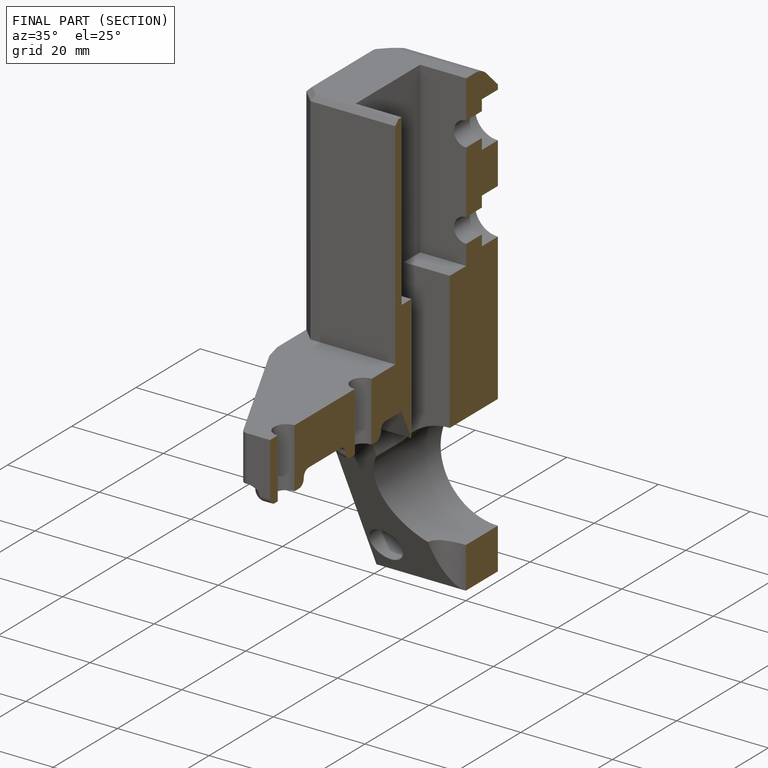
[diagram: finished part — half-section view (interior)]
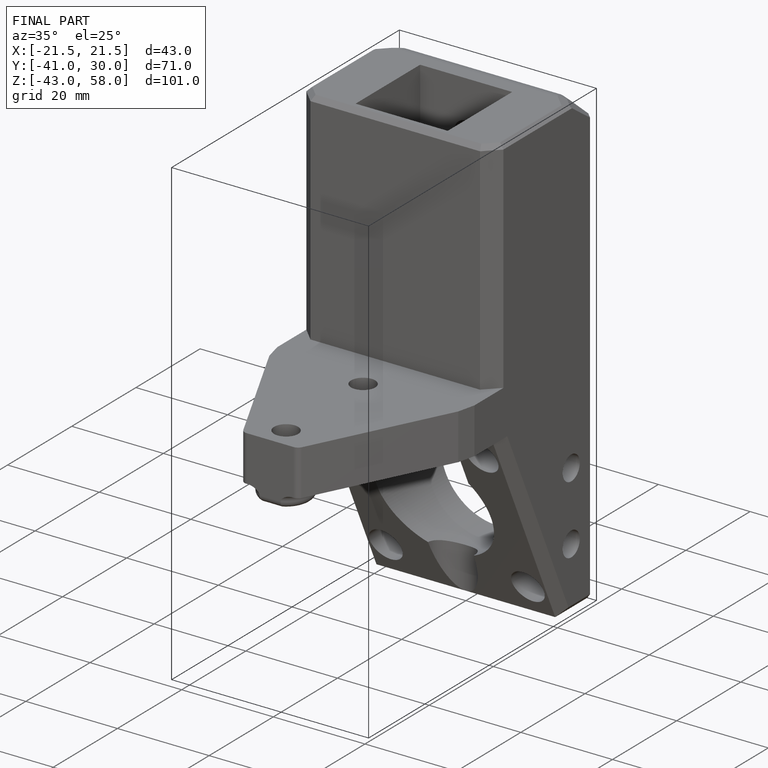
[diagram: finished part — iso view with bounding-box wireframe]
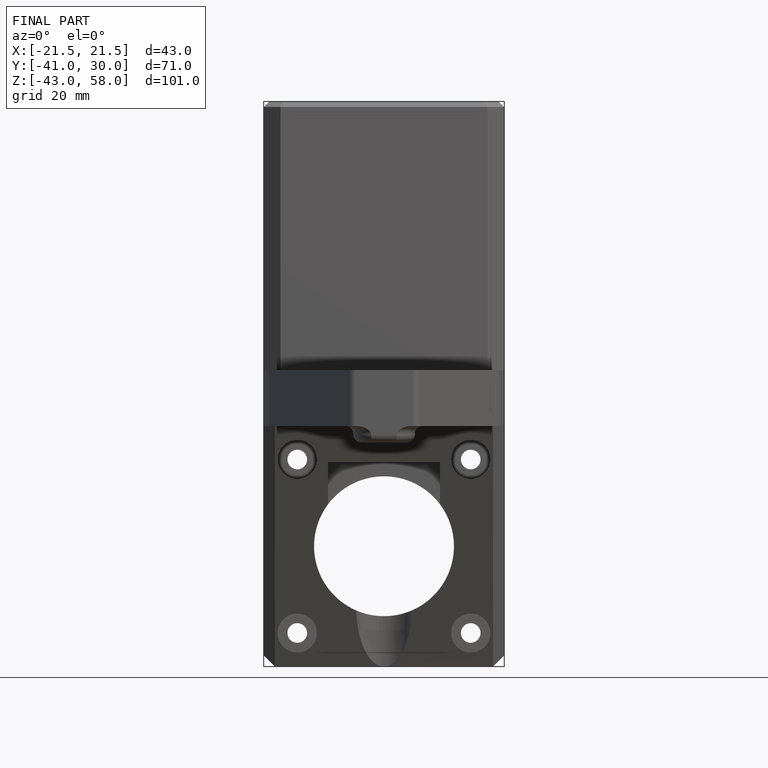
[diagram: finished part — front view with bounding-box wireframe]
